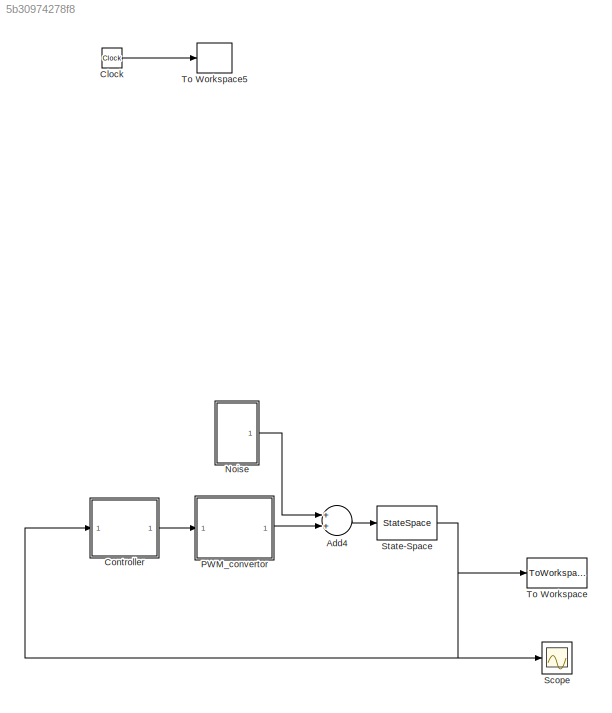
MODEL slx_5b30974278f8
KIND model
CONFIG AbsTol = auto
CONFIG FixedStep = 1/20000/5
CONFIG MaxStep = 0.01
CONFIG MinStep = auto
CONFIG RelTol = 1e-3
CONFIG SampleTimeConstraint = Unconstrained
CONFIG Solver = ode45
CONFIG SolverMode = Auto
CONFIG SolverName = ode45
CONFIG StartTime = 0.0
CONFIG StopTime = 0.03
BLOCK [Sum] Add4
  InputSameDT = off
  OutDataTypeStr = Inherit: Inherit via internal rule
  Ports = [2, 1]
  SaturateOnIntegerOverflow = off
BLOCK [Clock] Clock
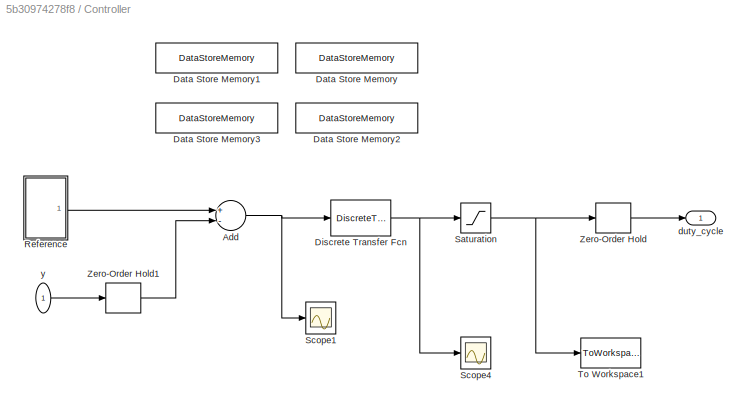
BLOCK [SubSystem] Controller
  Ports = [1, 1]
  RequestExecContextInheritance = off
BLOCK [Sum] Controller/Add
  InputSameDT = off
  Inputs = +-
  OutDataTypeStr = Inherit: Inherit via internal rule
  Ports = [2, 1]
  SaturateOnIntegerOverflow = off
BLOCK [DataStoreMemory] Controller/Data Store Memory
  DataStoreName = x_chap_ant
  InitialValue = [0; 0; 0; 0; 0; 0]
  OutDataTypeStr = double
  ReadBeforeWriteMsg = warning
  SignalType = real
  WriteAfterReadMsg = warning
  WriteAfterWriteMsg = warning
BLOCK [DataStoreMemory] Controller/Data Store Memory1
  DataStoreName = v
  InitialValue = [0]
  OutDataTypeStr = double
  ReadBeforeWriteMsg = warning
  SignalType = real
  WriteAfterReadMsg = warning
  WriteAfterWriteMsg = warning
BLOCK [DataStoreMemory] Controller/Data Store Memory2
  DataStoreName = w_chap
  OutDataTypeStr = double
  ReadBeforeWriteMsg = warning
  SignalType = real
  WriteAfterReadMsg = warning
  WriteAfterWriteMsg = warning
BLOCK [DataStoreMemory] Controller/Data Store Memory3
  DataStoreName = w_chap_2
  OutDataTypeStr = double
  ReadBeforeWriteMsg = warning
  SignalType = real
  WriteAfterReadMsg = warning
  WriteAfterWriteMsg = warning
BLOCK [DiscreteTransferFcn] Controller/Discrete Transfer Fcn
  Denominator = K.den{:}
  InputPortMap = u0
  Numerator = K.num{:}
  Ports = [1, 1]
  SampleTime = 1/20000
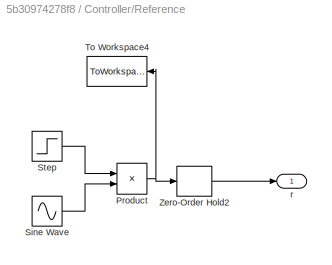
BLOCK [SubSystem] Controller/Reference
  Ports = [0, 1]
  RequestExecContextInheritance = off
BLOCK [Product] Controller/Reference/Product
  InputSameDT = off
  OutDataTypeStr = Inherit: Inherit via internal rule
  Ports = [2, 1]
  RndMeth = Floor
  SaturateOnIntegerOverflow = off
BLOCK [Sin] Controller/Reference/Sine Wave
  Amplitude = amp_ref
  Frequency = freq_ref
  Phase = def
  Ports = [0, 1]
  SampleTime = 0
BLOCK [Step] Controller/Reference/Step
  After = step_2
  Before = step_1
  SampleTime = 0
  Time = t_step
BLOCK [ToWorkspace] Controller/Reference/To Workspace4
  MaxDataPoints = inf
  Ports = [1]
  SampleTime = -1
  VariableName = r
BLOCK [ZeroOrderHold] Controller/Reference/Zero-Order Hold2
  SampleTime = 1/20000
BLOCK [Outport] Controller/Reference/r
  IconDisplay = Port number
BLOCK [Saturate] Controller/Saturation
  InputPortMap = u0
  LowerLimit = -40
  Ports = [1, 1]
  UpperLimit = 40
BLOCK [Scope] Controller/Scope1
  DataFormat = StructureWithTime
  Floating = off
  LimitDataPoints = off
  NumInputPorts = 1
  Ports = [1]
  SaveName = ScopeData6
  YMax = 0.6619
  YMin = -0.54986
BLOCK [Scope] Controller/Scope4
  DataFormat = StructureWithTime
  Floating = off
  LimitDataPoints = off
  NumInputPorts = 1
  Ports = [1]
  SaveName = ScopeData4
  YMax = 629.72455
  YMin = -635.16406
BLOCK [ToWorkspace] Controller/To Workspace1
  MaxDataPoints = inf
  Ports = [1]
  SampleTime = -1
  VariableName = u
BLOCK [ZeroOrderHold] Controller/Zero-Order Hold
  SampleTime = 1/20000
BLOCK [ZeroOrderHold] Controller/Zero-Order Hold1
  SampleTime = 1/20000
BLOCK [Outport] Controller/duty_cycle
  IconDisplay = Port number
BLOCK [Inport] Controller/y
  IconDisplay = Port number
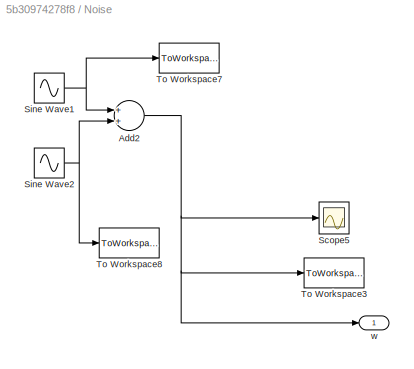
BLOCK [SubSystem] Noise
  Ports = [0, 1]
  RequestExecContextInheritance = off
BLOCK [Sum] Noise/Add2
  InputSameDT = off
  OutDataTypeStr = Inherit: Inherit via internal rule
  Ports = [2, 1]
  SaturateOnIntegerOverflow = off
BLOCK [Scope] Noise/Scope5
  DataFormat = StructureWithTime
  Floating = off
  LimitDataPoints = off
  NumInputPorts = 1
  Ports = [1]
  SaveName = ScopeData5
  YMax = 0.175
  YMin = -0.1
BLOCK [Sin] Noise/Sine Wave1
  Amplitude = amp_dist
  Frequency = freq_dist
  Ports = [0, 1]
  SampleTime = 0
BLOCK [Sin] Noise/Sine Wave2
  Amplitude = amp_dist_2
  Frequency = freq_dist_2
  Ports = [0, 1]
  SampleTime = 0
BLOCK [ToWorkspace] Noise/To Workspace3
  MaxDataPoints = inf
  Ports = [1]
  SampleTime = -1
  VariableName = wout_total
BLOCK [ToWorkspace] Noise/To Workspace7
  MaxDataPoints = inf
  Ports = [1]
  SampleTime = -1
  VariableName = wout
BLOCK [ToWorkspace] Noise/To Workspace8
  MaxDataPoints = inf
  Ports = [1]
  SampleTime = -1
  VariableName = wout2
BLOCK [Outport] Noise/w
  IconDisplay = Port number
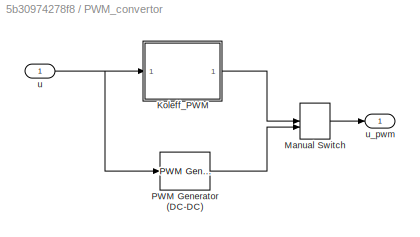
BLOCK [SubSystem] PWM_convertor
  Ports = [1, 1]
  RequestExecContextInheritance = off
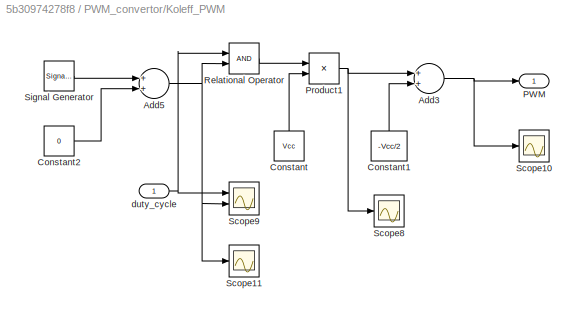
BLOCK [SubSystem] PWM_convertor/Koleff_PWM
  Ports = [1, 1]
  RequestExecContextInheritance = off
BLOCK [Sum] PWM_convertor/Koleff_PWM/Add3
  InputSameDT = off
  OutDataTypeStr = Inherit: Inherit via internal rule
  Ports = [2, 1]
  SaturateOnIntegerOverflow = off
BLOCK [Sum] PWM_convertor/Koleff_PWM/Add5
  InputSameDT = off
  OutDataTypeStr = Inherit: Inherit via internal rule
  Ports = [2, 1]
  SaturateOnIntegerOverflow = off
BLOCK [Constant] PWM_convertor/Koleff_PWM/Constant
  Value = Vcc
BLOCK [Constant] PWM_convertor/Koleff_PWM/Constant1
  Value = -Vcc/2
BLOCK [Constant] PWM_convertor/Koleff_PWM/Constant2
  Value = 0
BLOCK [Outport] PWM_convertor/Koleff_PWM/PWM
  IconDisplay = Port number
BLOCK [Product] PWM_convertor/Koleff_PWM/Product1
  InputSameDT = off
  OutDataTypeStr = Inherit: Inherit via internal rule
  Ports = [2, 1]
  RndMeth = Floor
  SaturateOnIntegerOverflow = off
BLOCK [RelationalOperator] PWM_convertor/Koleff_PWM/Relational Operator
  InputSameDT = off
  OutDataTypeStr = boolean
  Ports = [2, 1]
BLOCK [Scope] PWM_convertor/Koleff_PWM/Scope10
  DataFormat = StructureWithTime
  Floating = off
  LimitDataPoints = off
  NumInputPorts = 1
  Ports = [1]
  SaveName = ScopeData1
  YMax = 25.00000
  YMin = -25.00000
BLOCK [Scope] PWM_convertor/Koleff_PWM/Scope11
  DataFormat = StructureWithTime
  Floating = off
  LimitDataPoints = off
  NumInputPorts = 1
  Ports = [1]
  SaveName = ScopeData2
  YMax = 22.5
  YMin = -2.5
BLOCK [Scope] PWM_convertor/Koleff_PWM/Scope8
  DataFormat = StructureWithTime
  Floating = off
  LimitDataPoints = off
  NumInputPorts = 1
  Ports = [1]
  SaveName = ScopeData3
  YMax = 45.00000
  YMin = -5.00000
BLOCK [Scope] PWM_convertor/Koleff_PWM/Scope9
  DataFormat = StructureWithTime
  Floating = off
  LimitDataPoints = off
  NumInputPorts = 2
  Ports = [2]
  SaveName = ScopeData5
  YMax = 50.00000~5
  YMin = -50.00000~-5
BLOCK [SignalGenerator] PWM_convertor/Koleff_PWM/Signal Generator
  Amplitude = 40
  Frequency = 20000
  Ports = [0, 1]
  WaveForm = sawtooth
BLOCK [Inport] PWM_convertor/Koleff_PWM/duty_cycle
  IconDisplay = Port number
BLOCK [ManualSwitch] PWM_convertor/Manual Switch
BLOCK [Reference] PWM_convertor/PWM Generator (DC-DC)  REF=powerlib_meascontrol/Pulse & Signal
Generators/PWM Generator
(DC-DC)
  Fsw = 5000
  Ports = [1, 1]
  SourceBlock = powerlib_meascontrol/Pulse & Signal\nGenerators/PWM Generator\n(DC-DC)
  SourceType = PWM Generator (DC-DC)
  Ts = 0
BLOCK [Inport] PWM_convertor/u
  IconDisplay = Port number
BLOCK [Outport] PWM_convertor/u_pwm
  IconDisplay = Port number
BLOCK [Scope] Scope
  DataFormat = StructureWithTime
  Floating = off
  LimitDataPoints = off
  NumInputPorts = 1
  Ports = [1]
  YMax = 0.79195
  YMin = -0.80264
BLOCK [StateSpace] State-Space
  A = A
  B = B
  C = C
  D = 0
  Ports = [1, 1]
  X0 = 0
BLOCK [ToWorkspace] To Workspace
  MaxDataPoints = inf
  Ports = [1]
  SampleTime = -1
  VariableName = y
BLOCK [ToWorkspace] To Workspace5
  MaxDataPoints = inf
  Ports = [1]
  SampleTime = -1
  VariableName = t
LINE Add4:1 -> State-Space:1
LINE Clock:1 -> To Workspace5:1
NET Controller/Add:1 -> Controller/Discrete Transfer Fcn:1, Controller/Scope1:1
NET Controller/Discrete Transfer Fcn:1 -> Controller/Saturation:1, Controller/Scope4:1
NET Controller/Reference/Product:1 -> Controller/Reference/To Workspace4:1, Controller/Reference/Zero-Order Hold2:1
LINE Controller/Reference/Sine Wave:1 -> Controller/Reference/Product:2
LINE Controller/Reference/Step:1 -> Controller/Reference/Product:1
LINE Controller/Reference/Zero-Order Hold2:1 -> Controller/Reference/r:1
LINE Controller/Reference:1 -> Controller/Add:1
NET Controller/Saturation:1 -> Controller/To Workspace1:1, Controller/Zero-Order Hold:1
LINE Controller/Zero-Order Hold1:1 -> Controller/Add:2
LINE Controller/Zero-Order Hold:1 -> Controller/duty_cycle:1
LINE Controller/y:1 -> Controller/Zero-Order Hold1:1
LINE Controller:1 -> PWM_convertor:1
NET Noise/Add2:1 -> Noise/Scope5:1, Noise/To Workspace3:1, Noise/w:1
NET Noise/Sine Wave1:1 -> Noise/Add2:1, Noise/To Workspace7:1
NET Noise/Sine Wave2:1 -> Noise/Add2:2, Noise/To Workspace8:1
LINE Noise:1 -> Add4:1
NET PWM_convertor/Koleff_PWM/Add3:1 -> PWM_convertor/Koleff_PWM/PWM:1, PWM_convertor/Koleff_PWM/Scope10:1
NET PWM_convertor/Koleff_PWM/Add5:1 -> PWM_convertor/Koleff_PWM/Relational Operator:2, PWM_convertor/Koleff_PWM/Scope11:1, PWM_convertor/Koleff_PWM/Scope9:2
LINE PWM_convertor/Koleff_PWM/Constant1:1 -> PWM_convertor/Koleff_PWM/Add3:2
LINE PWM_convertor/Koleff_PWM/Constant2:1 -> PWM_convertor/Koleff_PWM/Add5:2
LINE PWM_convertor/Koleff_PWM/Constant:1 -> PWM_convertor/Koleff_PWM/Product1:2
NET PWM_convertor/Koleff_PWM/Product1:1 -> PWM_convertor/Koleff_PWM/Add3:1, PWM_convertor/Koleff_PWM/Scope8:1
LINE PWM_convertor/Koleff_PWM/Relational Operator:1 -> PWM_convertor/Koleff_PWM/Product1:1
LINE PWM_convertor/Koleff_PWM/Signal Generator:1 -> PWM_convertor/Koleff_PWM/Add5:1
NET PWM_convertor/Koleff_PWM/duty_cycle:1 -> PWM_convertor/Koleff_PWM/Relational Operator:1, PWM_convertor/Koleff_PWM/Scope9:1
LINE PWM_convertor/Koleff_PWM:1 -> PWM_convertor/Manual Switch:1
LINE PWM_convertor/Manual Switch:1 -> PWM_convertor/u_pwm:1
LINE PWM_convertor/PWM Generator (DC-DC):1 -> PWM_convertor/Manual Switch:2
NET PWM_convertor/u:1 -> PWM_convertor/Koleff_PWM:1, PWM_convertor/PWM Generator (DC-DC):1
LINE PWM_convertor:1 -> Add4:2
NET State-Space:1 -> Controller:1, Scope:1, To Workspace:1
note: NET lines group one-source signal fan-out (src -> all destinations, sorted); 1:1 wires keep LINE
